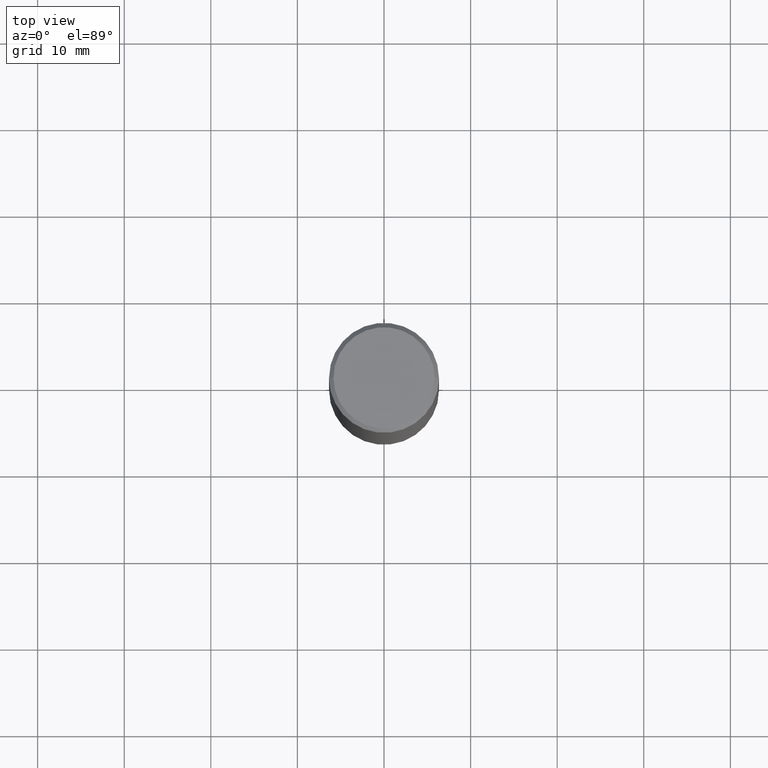
[diagram: clean part render]
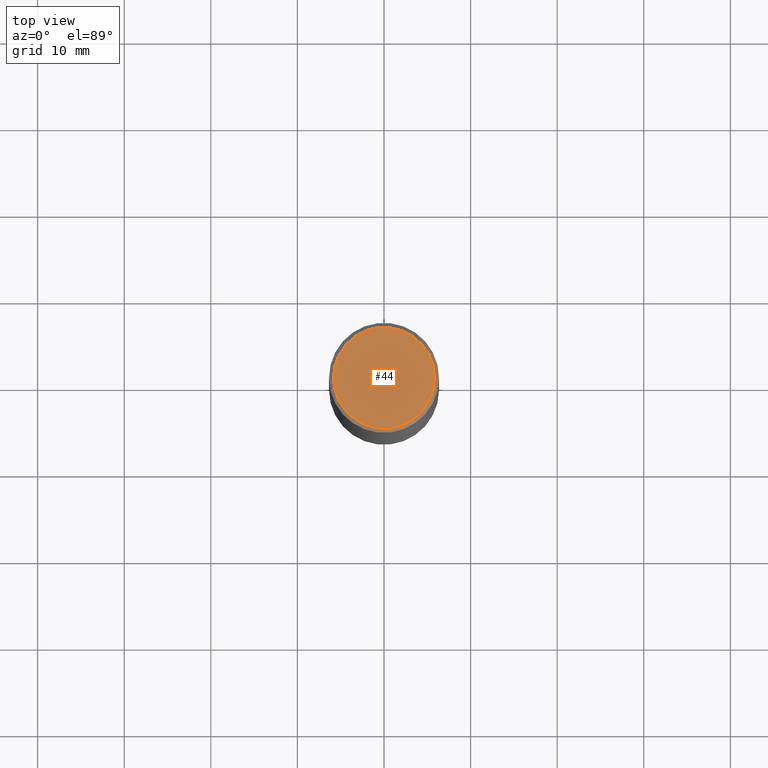
[diagram: same view with one face highlighted and labeled with its STEP entity id]
A machine part, top view. The second image highlights one B-rep face of the part: STEP entity #44.
In plain terms, the highlighted planar face has unit normal (0, -0, -1).
Its self-contained STEP definition (entity closure, byte-faithful):
#10 = CARTESIAN_POINT ( 'NONE',  ( 1.606081415867836334E-15, 0.2299999999999993161, -8.009064516888709120E-16 ) ) ;
#42 = AXIS2_PLACEMENT_3D ( 'NONE', #155, #312, #461 ) ;
#44 = ADVANCED_FACE ( 'NONE', ( #200 ), #285, .F. ) ;
#76 = ORIENTED_EDGE ( 'NONE', *, *, #281, .T. ) ;
#135 = AXIS2_PLACEMENT_3D ( 'NONE', #151, #384, #278 ) ;
#148 = DIRECTION ( 'NONE',  ( 2.438088387897960049E-29, -3.491481338843145188E-15, -1.000000000000000000 ) ) ;
#151 = CARTESIAN_POINT ( 'NONE',  ( -1.043851414335219820E-46, 1.490343170380447200E-32, 4.268512490100411279E-18 ) ) ;
#155 = CARTESIAN_POINT ( 'NONE',  ( -1.043851414335219820E-46, 1.490343170380447200E-32, 4.268512490100411279E-18 ) ) ;
#186 = VERTEX_POINT ( 'NONE', #469 ) ;
#192 = VERTEX_POINT ( 'NONE', #362 ) ;
#200 = FACE_OUTER_BOUND ( 'NONE', #218, .T. ) ;
#218 = EDGE_LOOP ( 'NONE', ( #345, #76 ) ) ;
#278 = DIRECTION ( 'NONE',  ( 1.000000000000000000, -6.982962677686267499E-15, 4.876225828469323455E-29 ) ) ;
#281 = EDGE_CURVE ( 'NONE', #192, #186, #481, .T. ) ;
#285 = PLANE ( 'NONE',  #482 ) ;
#312 = DIRECTION ( 'NONE',  ( -2.445468806185136597E-29, 3.491481338843145583E-15, 1.000000000000000000 ) ) ;
#320 = EDGE_CURVE ( 'NONE', #186, #192, #408, .T. ) ;
#345 = ORIENTED_EDGE ( 'NONE', *, *, #320, .T. ) ;
#362 = CARTESIAN_POINT ( 'NONE',  ( 0.2299999999999993161, -1.681434332853594870E-15, 4.268512490111905999E-18 ) ) ;
#384 = DIRECTION ( 'NONE',  ( -2.445468806185136597E-29, 3.491481338843145583E-15, 1.000000000000000000 ) ) ;
#390 = DIRECTION ( 'NONE',  ( -1.000000000000000000, 6.982962677686265922E-15, -4.876176775795935793E-29 ) ) ;
#408 = CIRCLE ( 'NONE', #42, 0.2299999999999993161 ) ;
#461 = DIRECTION ( 'NONE',  ( 1.000000000000000000, -6.982962677686267499E-15, 4.876225828469323455E-29 ) ) ;
#469 = CARTESIAN_POINT ( 'NONE',  ( -0.2299999999999993161, 1.640996229256267786E-15, 4.268512490089056766E-18 ) ) ;
#481 = CIRCLE ( 'NONE', #135, 0.2299999999999993161 ) ;
#482 = AXIS2_PLACEMENT_3D ( 'NONE', #10, #148, #390 ) ;